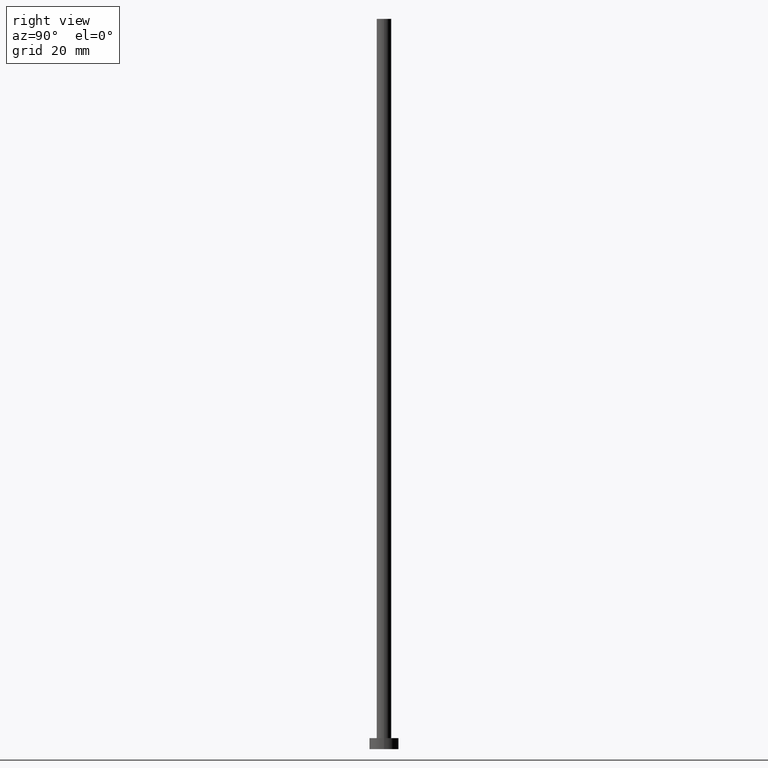
[diagram: clean part render]
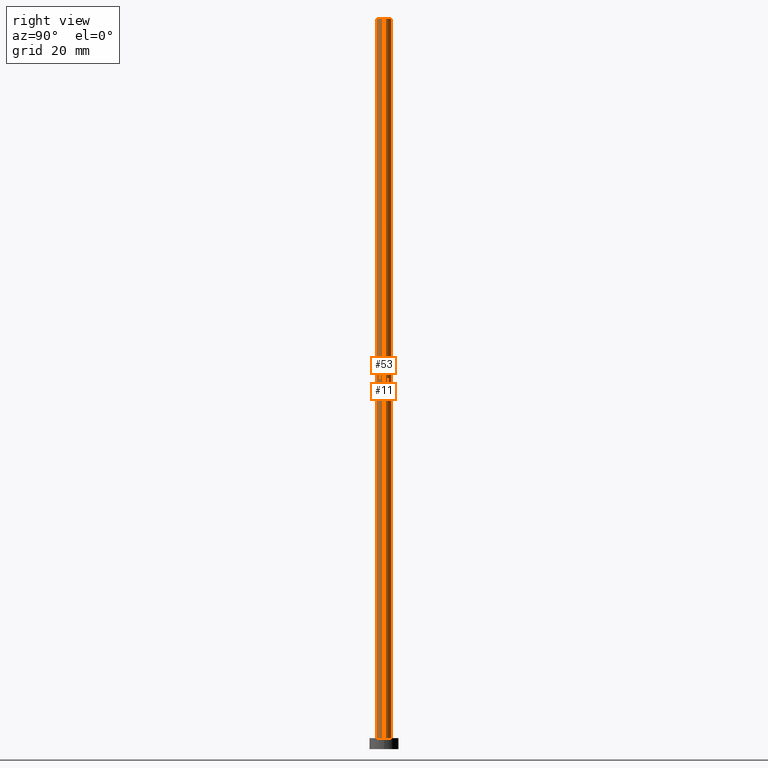
[diagram: same view with one multi-face feature highlighted, each face labeled with its STEP entity id]
A machine part, right view. The highlighted faces form ONE feature: a constant-radius fillet chain: 2 tangent blend faces with common blend radius 2 mm. The faces share edges in the B-rep.
Their STEP definitions:
[1] entity #11 (Cylinder):
#11 = ADVANCED_FACE ( 'NONE', ( #37 ), #201, .T. ) ;
#31 = DIRECTION ( 'NONE',  ( -0.000000000000000000, -0.000000000000000000, -1.000000000000000000 ) ) ;
#35 = EDGE_CURVE ( 'NONE', #243, #193, #165, .T. ) ;
#36 = CARTESIAN_POINT ( 'NONE',  ( -2.000000000000000000, 0.000000000000000000, 3.000000000000000000 ) ) ;
#37 = FACE_OUTER_BOUND ( 'NONE', #77, .T. ) ;
#38 = ORIENTED_EDGE ( 'NONE', *, *, #136, .F. ) ;
#51 = AXIS2_PLACEMENT_3D ( 'NONE', #146, #31, #153 ) ;
#60 = VERTEX_POINT ( 'NONE', #186 ) ;
#73 = EDGE_CURVE ( 'NONE', #149, #243, #120, .T. ) ;
#77 = EDGE_LOOP ( 'NONE', ( #162, #246, #126, #38 ) ) ;
#78 = VECTOR ( 'NONE', #154, 1000.000000000000000 ) ;
#87 = CARTESIAN_POINT ( 'NONE',  ( 2.000000000000000000, 2.449293598294706414E-16, 3.000000000000000000 ) ) ;
#91 = CARTESIAN_POINT ( 'NONE',  ( 0.000000000000000000, 0.000000000000000000, 3.000000000000000000 ) ) ;
#95 = AXIS2_PLACEMENT_3D ( 'NONE', #91, #99, #247 ) ;
#99 = DIRECTION ( 'NONE',  ( 0.000000000000000000, 0.000000000000000000, 1.000000000000000000 ) ) ;
#114 = VECTOR ( 'NONE', #116, 1000.000000000000000 ) ;
#116 = DIRECTION ( 'NONE',  ( -0.000000000000000000, -0.000000000000000000, -1.000000000000000000 ) ) ;
#120 = LINE ( 'NONE', #255, #114 ) ;
#126 = ORIENTED_EDGE ( 'NONE', *, *, #35, .T. ) ;
#135 = LINE ( 'NONE', #215, #78 ) ;
#136 = EDGE_CURVE ( 'NONE', #60, #193, #135, .T. ) ;
#140 = CARTESIAN_POINT ( 'NONE',  ( 0.000000000000000000, 0.000000000000000000, 200.0000000000000000 ) ) ;
#141 = CIRCLE ( 'NONE', #176, 2.000000000000000000 ) ;
#146 = CARTESIAN_POINT ( 'NONE',  ( 0.000000000000000000, 0.000000000000000000, 200.0000000000000000 ) ) ;
#149 = VERTEX_POINT ( 'NONE', #237 ) ;
#153 = DIRECTION ( 'NONE',  ( -1.000000000000000000, 0.000000000000000000, 0.000000000000000000 ) ) ;
#154 = DIRECTION ( 'NONE',  ( -0.000000000000000000, -0.000000000000000000, -1.000000000000000000 ) ) ;
#162 = ORIENTED_EDGE ( 'NONE', *, *, #187, .F. ) ;
#165 = CIRCLE ( 'NONE', #95, 2.000000000000000000 ) ;
#176 = AXIS2_PLACEMENT_3D ( 'NONE', #140, #202, #205 ) ;
#186 = CARTESIAN_POINT ( 'NONE',  ( -2.000000000000000000, 0.000000000000000000, 200.0000000000000000 ) ) ;
#187 = EDGE_CURVE ( 'NONE', #149, #60, #141, .T. ) ;
#193 = VERTEX_POINT ( 'NONE', #36 ) ;
#201 = CYLINDRICAL_SURFACE ( 'NONE', #51, 2.000000000000000000 ) ;
#202 = DIRECTION ( 'NONE',  ( 0.000000000000000000, 0.000000000000000000, 1.000000000000000000 ) ) ;
#205 = DIRECTION ( 'NONE',  ( 1.000000000000000000, 0.000000000000000000, 0.000000000000000000 ) ) ;
#215 = CARTESIAN_POINT ( 'NONE',  ( -2.000000000000000000, 0.000000000000000000, 200.0000000000000000 ) ) ;
#237 = CARTESIAN_POINT ( 'NONE',  ( 2.000000000000000000, 2.449293598294706414E-16, 200.0000000000000000 ) ) ;
#243 = VERTEX_POINT ( 'NONE', #87 ) ;
#246 = ORIENTED_EDGE ( 'NONE', *, *, #73, .T. ) ;
#247 = DIRECTION ( 'NONE',  ( 1.000000000000000000, 0.000000000000000000, 0.000000000000000000 ) ) ;
#255 = CARTESIAN_POINT ( 'NONE',  ( 2.000000000000000000, 2.449293598294706414E-16, 200.0000000000000000 ) ) ;
[2] entity #53 (Cylinder):
#3 = DIRECTION ( 'NONE',  ( 1.000000000000000000, 0.000000000000000000, 0.000000000000000000 ) ) ;
#22 = EDGE_CURVE ( 'NONE', #193, #243, #45, .T. ) ;
#36 = CARTESIAN_POINT ( 'NONE',  ( -2.000000000000000000, 0.000000000000000000, 3.000000000000000000 ) ) ;
#45 = CIRCLE ( 'NONE', #133, 2.000000000000000000 ) ;
#53 = ADVANCED_FACE ( 'NONE', ( #209 ), #107, .T. ) ;
#60 = VERTEX_POINT ( 'NONE', #186 ) ;
#64 = ORIENTED_EDGE ( 'NONE', *, *, #136, .T. ) ;
#66 = CIRCLE ( 'NONE', #222, 2.000000000000000000 ) ;
#73 = EDGE_CURVE ( 'NONE', #149, #243, #120, .T. ) ;
#78 = VECTOR ( 'NONE', #154, 1000.000000000000000 ) ;
#87 = CARTESIAN_POINT ( 'NONE',  ( 2.000000000000000000, 2.449293598294706414E-16, 3.000000000000000000 ) ) ;
#107 = CYLINDRICAL_SURFACE ( 'NONE', #228, 2.000000000000000000 ) ;
#114 = VECTOR ( 'NONE', #116, 1000.000000000000000 ) ;
#116 = DIRECTION ( 'NONE',  ( -0.000000000000000000, -0.000000000000000000, -1.000000000000000000 ) ) ;
#120 = LINE ( 'NONE', #255, #114 ) ;
#121 = ORIENTED_EDGE ( 'NONE', *, *, #226, .F. ) ;
#123 = CARTESIAN_POINT ( 'NONE',  ( 0.000000000000000000, 0.000000000000000000, 3.000000000000000000 ) ) ;
#127 = DIRECTION ( 'NONE',  ( 0.000000000000000000, 0.000000000000000000, 1.000000000000000000 ) ) ;
#133 = AXIS2_PLACEMENT_3D ( 'NONE', #123, #127, #3 ) ;
#135 = LINE ( 'NONE', #215, #78 ) ;
#136 = EDGE_CURVE ( 'NONE', #60, #193, #135, .T. ) ;
#149 = VERTEX_POINT ( 'NONE', #237 ) ;
#154 = DIRECTION ( 'NONE',  ( -0.000000000000000000, -0.000000000000000000, -1.000000000000000000 ) ) ;
#158 = DIRECTION ( 'NONE',  ( 0.000000000000000000, 0.000000000000000000, 1.000000000000000000 ) ) ;
#161 = EDGE_LOOP ( 'NONE', ( #211, #121, #64, #180 ) ) ;
#169 = DIRECTION ( 'NONE',  ( -1.000000000000000000, 0.000000000000000000, 0.000000000000000000 ) ) ;
#180 = ORIENTED_EDGE ( 'NONE', *, *, #22, .T. ) ;
#184 = CARTESIAN_POINT ( 'NONE',  ( 0.000000000000000000, 0.000000000000000000, 200.0000000000000000 ) ) ;
#186 = CARTESIAN_POINT ( 'NONE',  ( -2.000000000000000000, 0.000000000000000000, 200.0000000000000000 ) ) ;
#193 = VERTEX_POINT ( 'NONE', #36 ) ;
#203 = CARTESIAN_POINT ( 'NONE',  ( 0.000000000000000000, 0.000000000000000000, 200.0000000000000000 ) ) ;
#209 = FACE_OUTER_BOUND ( 'NONE', #161, .T. ) ;
#211 = ORIENTED_EDGE ( 'NONE', *, *, #73, .F. ) ;
#215 = CARTESIAN_POINT ( 'NONE',  ( -2.000000000000000000, 0.000000000000000000, 200.0000000000000000 ) ) ;
#222 = AXIS2_PLACEMENT_3D ( 'NONE', #203, #158, #241 ) ;
#226 = EDGE_CURVE ( 'NONE', #60, #149, #66, .T. ) ;
#228 = AXIS2_PLACEMENT_3D ( 'NONE', #184, #234, #169 ) ;
#234 = DIRECTION ( 'NONE',  ( -0.000000000000000000, -0.000000000000000000, -1.000000000000000000 ) ) ;
#237 = CARTESIAN_POINT ( 'NONE',  ( 2.000000000000000000, 2.449293598294706414E-16, 200.0000000000000000 ) ) ;
#241 = DIRECTION ( 'NONE',  ( 1.000000000000000000, 0.000000000000000000, 0.000000000000000000 ) ) ;
#243 = VERTEX_POINT ( 'NONE', #87 ) ;
#255 = CARTESIAN_POINT ( 'NONE',  ( 2.000000000000000000, 2.449293598294706414E-16, 200.0000000000000000 ) ) ;